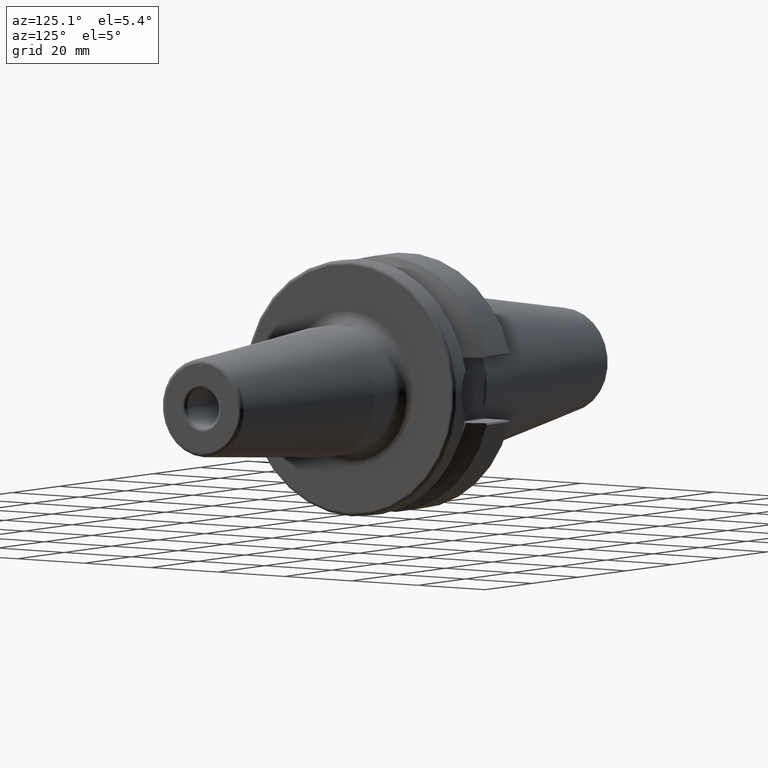
[diagram: clean part render]
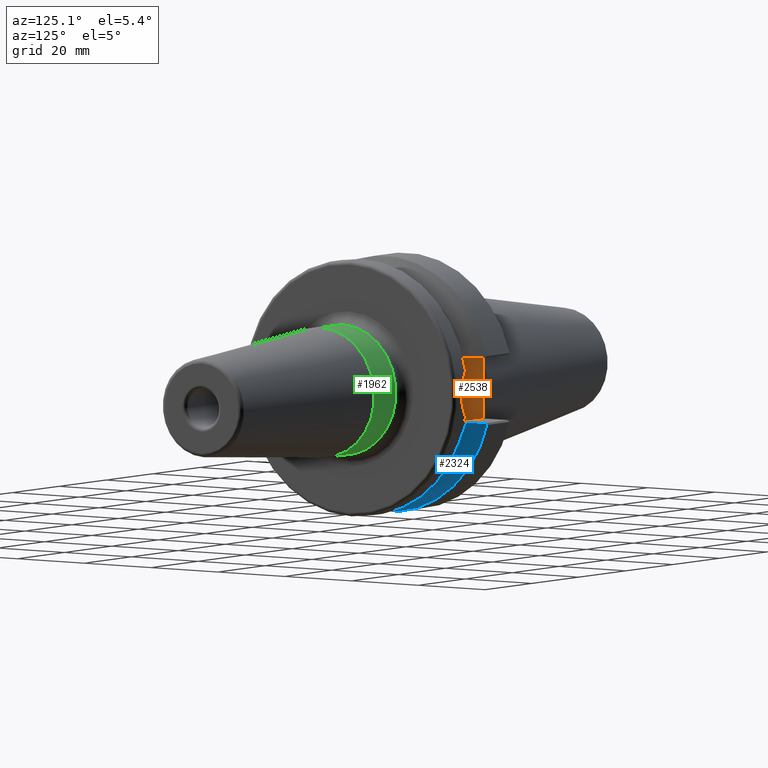
[diagram: same view with three faces highlighted in distinct colors, each labeled with its STEP entity id]
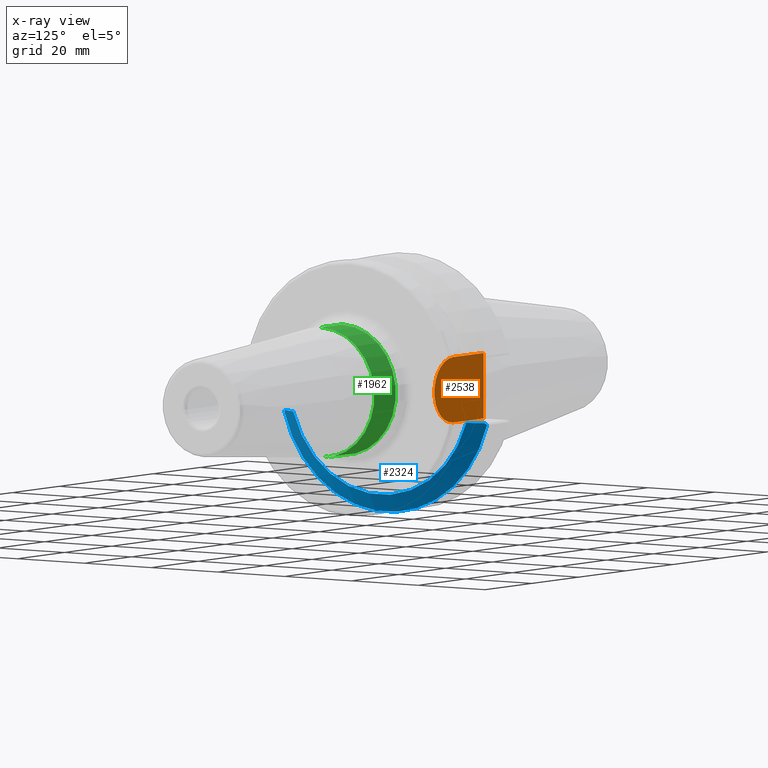
[diagram: x-ray of the same camera — body ghosted, the three highlighted faces saturated]
A machine part, auxiliary view with three faces highlighted in distinct colors.
The next image is the same camera in x-ray (body ghosted, the three faces saturated) — at least one of them is partly hidden behind the body in this view.
Their STEP definitions:

[orange] entity #2538 — the highlighted planar face has unit normal (0, 1, 0).
#881=DIRECTION('',(0.E0,0.E0,-1.E0));
#882=VECTOR('',#881,1.61E1);
#883=CARTESIAN_POINT('',(2.E0,2.26E1,8.05E0));
#884=LINE('',#883,#882);
#971=CARTESIAN_POINT('',(1.495E1,2.26E1,0.E0));
#972=DIRECTION('',(0.E0,-1.E0,0.E0));
#973=DIRECTION('',(0.E0,0.E0,-1.E0));
#974=AXIS2_PLACEMENT_3D('',#971,#972,#973);
#976=DIRECTION('',(1.E0,0.E0,0.E0));
#977=VECTOR('',#976,1.295E1);
#978=CARTESIAN_POINT('',(2.E0,2.26E1,8.05E0));
#979=LINE('',#978,#977);
#980=DIRECTION('',(-1.E0,0.E0,0.E0));
#981=VECTOR('',#980,1.295E1);
#982=CARTESIAN_POINT('',(1.495E1,2.26E1,-8.05E0));
#983=LINE('',#982,#981);
#1026=CARTESIAN_POINT('',(2.E0,2.26E1,8.05E0));
#1027=CARTESIAN_POINT('',(2.E0,2.26E1,-8.05E0));
#1028=VERTEX_POINT('',#1026);
#1029=VERTEX_POINT('',#1027);
#1046=CARTESIAN_POINT('',(1.495E1,2.26E1,-8.05E0));
#1047=CARTESIAN_POINT('',(1.495E1,2.26E1,8.05E0));
#1048=VERTEX_POINT('',#1046);
#1049=VERTEX_POINT('',#1047);
#2527=CARTESIAN_POINT('',(0.E0,2.26E1,0.E0));
#2528=DIRECTION('',(0.E0,1.E0,0.E0));
#2529=DIRECTION('',(1.E0,0.E0,0.E0));
#2530=AXIS2_PLACEMENT_3D('',#2527,#2528,#2529);
#2531=PLANE('',#2530);
#2532=ORIENTED_EDGE('',*,*,#2205,.T.);
#2533=ORIENTED_EDGE('',*,*,#2506,.F.);
#2534=ORIENTED_EDGE('',*,*,#2370,.T.);
#2535=ORIENTED_EDGE('',*,*,#2467,.F.);
#2536=EDGE_LOOP('',(#2532,#2533,#2534,#2535));
#2537=FACE_OUTER_BOUND('',#2536,.F.);
#2538=ADVANCED_FACE('',(#2537),#2531,.T.);
#975=CIRCLE('',#974,8.05E0);
#2205=EDGE_CURVE('',#1048,#1049,#975,.T.);
#2370=EDGE_CURVE('',#1028,#1029,#884,.T.);
#2467=EDGE_CURVE('',#1048,#1029,#983,.T.);
#2506=EDGE_CURVE('',#1028,#1049,#979,.T.);

[blue] entity #2324 — the highlighted conical surface has half-angle 60 deg.
#797=CARTESIAN_POINT('',(1.41E1,-2.589378524176E1,-8.05E0));
#798=CARTESIAN_POINT('',(1.386450341249E1,-2.632093406585E1,-8.05E0));
#799=CARTESIAN_POINT('',(1.338588596161E1,-2.718719807101E1,-8.05E0));
#800=CARTESIAN_POINT('',(1.264535505638E1,-2.852228716965E1,-8.05E0));
#801=CARTESIAN_POINT('',(1.213636940407E1,-2.943672353446E1,-8.05E0));
#802=CARTESIAN_POINT('',(1.187809346105E1,-2.99E1,-8.05E0));
#804=CARTESIAN_POINT('',(1.41E1,0.E0,0.E0));
#805=DIRECTION('',(1.E0,0.E0,0.E0));
#806=DIRECTION('',(0.E0,-9.549178917964E-1,-2.968700387830E-1));
#807=AXIS2_PLACEMENT_3D('',#804,#805,#806);
#809=CARTESIAN_POINT('',(1.187809346105E1,2.99E1,-8.05E0));
#810=CARTESIAN_POINT('',(1.213608053432E1,2.943724168785E1,-8.05E0));
#811=CARTESIAN_POINT('',(1.264468269184E1,2.852349654788E1,-8.05E0));
#812=CARTESIAN_POINT('',(1.338523678300E1,2.718837129527E1,-8.05E0));
#813=CARTESIAN_POINT('',(1.386422607045E1,2.632143711487E1,-8.05E0));
#814=CARTESIAN_POINT('',(1.41E1,2.589378524176E1,-8.05E0));
#816=CARTESIAN_POINT('',(1.187809346105E1,2.99E1,-8.05E0));
#817=CARTESIAN_POINT('',(1.184412243022E1,2.994800919416E1,-8.098009194156E0));
#818=CARTESIAN_POINT('',(1.177593456126E1,3.004428424075E1,-8.194284240747E0));
#819=CARTESIAN_POINT('',(1.167291601044E1,3.018946614020E1,-8.339466140200E0));
#820=CARTESIAN_POINT('',(1.160374493301E1,3.028676841650E1,-8.436768416504E0));
#821=CARTESIAN_POINT('',(1.15690365E1,3.033554803451E1,-8.485548034509E0));
#823=CARTESIAN_POINT('',(1.15690365E1,0.E0,0.E0));
#824=DIRECTION('',(-1.E0,0.E0,0.E0));
#825=DIRECTION('',(0.E0,9.630332709368E-1,-2.693824772860E-1));
#826=AXIS2_PLACEMENT_3D('',#823,#824,#825);
#828=CARTESIAN_POINT('',(1.15690365E1,-3.033554803451E1,-8.485548034509E0));
#829=CARTESIAN_POINT('',(1.162109299730E1,-3.026238725388E1,-8.412387253883E0));
#830=CARTESIAN_POINT('',(1.172465915984E1,-3.011663519535E1,-8.266635195345E0));
#831=CARTESIAN_POINT('',(1.182713113718E1,-2.997202195639E1,-8.122021956386E0));
#832=CARTESIAN_POINT('',(1.187809346105E1,-2.99E1,-8.05E0));
#1034=CARTESIAN_POINT('',(1.41E1,2.589378524176E1,-8.05E0));
#1036=VERTEX_POINT('',#1034);
#1134=VERTEX_POINT('',#816);
#1135=VERTEX_POINT('',#821);
#1154=CARTESIAN_POINT('',(1.15690365E1,-3.033554803451E1,-8.485548034509E0));
#1156=VERTEX_POINT('',#1154);
#1168=VERTEX_POINT('',#797);
#1169=VERTEX_POINT('',#802);
#2308=CARTESIAN_POINT('',(1.283451825E1,0.E0,0.E0));
#2309=DIRECTION('',(-1.E0,0.E0,0.E0));
#2310=DIRECTION('',(0.E0,0.E0,-1.E0));
#2311=AXIS2_PLACEMENT_3D('',#2308,#2309,#2310);
#2312=CONICAL_SURFACE('',#2311,2.930812131295E1,6.E1);
#2313=ORIENTED_EDGE('',*,*,#2119,.F.);
#2315=ORIENTED_EDGE('',*,*,#2314,.T.);
#2317=ORIENTED_EDGE('',*,*,#2316,.F.);
#2319=ORIENTED_EDGE('',*,*,#2318,.T.);
#2320=ORIENTED_EDGE('',*,*,#2235,.T.);
#2321=ORIENTED_EDGE('',*,*,#2281,.T.);
#2322=EDGE_LOOP('',(#2313,#2315,#2317,#2319,#2320,#2321));
#2323=FACE_OUTER_BOUND('',#2322,.F.);
#2324=ADVANCED_FACE('',(#2323),#2312,.T.);
#803=B_SPLINE_CURVE_WITH_KNOTS('',3,(#797,#798,#799,#800,#801,#802),
.UNSPECIFIED.,.F.,.F.,(4,1,1,4),(0.E0,3.333333333333E-1,6.666666666667E-1,1.E0),
.UNSPECIFIED.);
#808=CIRCLE('',#807,2.711624262590E1);
#815=B_SPLINE_CURVE_WITH_KNOTS('',3,(#809,#810,#811,#812,#813,#814),
.UNSPECIFIED.,.F.,.F.,(4,1,1,4),(0.E0,3.333333333333E-1,6.666666666667E-1,1.E0),
.UNSPECIFIED.);
#822=B_SPLINE_CURVE_WITH_KNOTS('',3,(#816,#817,#818,#819,#820,#821),
.UNSPECIFIED.,.F.,.F.,(4,1,1,4),(0.E0,3.333333333333E-1,6.666666666667E-1,1.E0),
.UNSPECIFIED.);
#827=CIRCLE('',#826,3.15E1);
#833=B_SPLINE_CURVE_WITH_KNOTS('',3,(#828,#829,#830,#831,#832),.UNSPECIFIED.,
.F.,.F.,(4,1,4),(0.E0,5.E-1,1.E0),.UNSPECIFIED.);
#2119=EDGE_CURVE('',#1168,#1169,#803,.T.);
#2235=EDGE_CURVE('',#1135,#1156,#827,.T.);
#2281=EDGE_CURVE('',#1156,#1169,#833,.T.);
#2314=EDGE_CURVE('',#1168,#1036,#808,.T.);
#2316=EDGE_CURVE('',#1134,#1036,#815,.T.);
#2318=EDGE_CURVE('',#1134,#1135,#822,.T.);

[green] entity #1962 — the highlighted cylindrical surface (partial cylindrical patch) has radius 16 mm, axis along (1, 0, 0).
#450=DIRECTION('',(-1.E0,0.E0,0.E0));
#451=VECTOR('',#450,9.175181055302E0);
#452=CARTESIAN_POINT('',(3.917518105530E1,0.E0,-1.6E1));
#453=LINE('',#452,#451);
#454=DIRECTION('',(-1.E0,0.E0,0.E0));
#455=VECTOR('',#454,9.175181055302E0);
#456=CARTESIAN_POINT('',(3.917518105530E1,0.E0,1.6E1));
#457=LINE('',#456,#455);
#463=CARTESIAN_POINT('',(3.917518105530E1,0.E0,0.E0));
#464=DIRECTION('',(1.E0,0.E0,0.E0));
#465=DIRECTION('',(0.E0,0.E0,-1.E0));
#466=AXIS2_PLACEMENT_3D('',#463,#464,#465);
#468=CARTESIAN_POINT('',(3.E1,0.E0,0.E0));
#469=DIRECTION('',(1.E0,0.E0,0.E0));
#470=DIRECTION('',(0.E0,0.E0,-1.E0));
#471=AXIS2_PLACEMENT_3D('',#468,#469,#470);
#1211=CARTESIAN_POINT('',(3.917518105530E1,0.E0,-1.6E1));
#1212=VERTEX_POINT('',#1211);
#1213=CARTESIAN_POINT('',(3.E1,0.E0,-1.6E1));
#1214=VERTEX_POINT('',#1213);
#1233=CARTESIAN_POINT('',(3.917518105530E1,0.E0,1.6E1));
#1234=VERTEX_POINT('',#1233);
#1235=CARTESIAN_POINT('',(3.E1,0.E0,1.6E1));
#1236=VERTEX_POINT('',#1235);
#1950=CARTESIAN_POINT('',(2.385E1,0.E0,0.E0));
#1951=DIRECTION('',(1.E0,0.E0,0.E0));
#1952=DIRECTION('',(0.E0,0.E0,1.E0));
#1953=AXIS2_PLACEMENT_3D('',#1950,#1951,#1952);
#1954=CYLINDRICAL_SURFACE('',#1953,1.6E1);
#1955=ORIENTED_EDGE('',*,*,#1940,.F.);
#1956=ORIENTED_EDGE('',*,*,#1917,.T.);
#1957=ORIENTED_EDGE('',*,*,#1944,.T.);
#1959=ORIENTED_EDGE('',*,*,#1958,.F.);
#1960=EDGE_LOOP('',(#1955,#1956,#1957,#1959));
#1961=FACE_OUTER_BOUND('',#1960,.F.);
#1962=ADVANCED_FACE('',(#1961),#1954,.T.);
#467=CIRCLE('',#466,1.6E1);
#472=CIRCLE('',#471,1.6E1);
#1917=EDGE_CURVE('',#1212,#1234,#467,.T.);
#1940=EDGE_CURVE('',#1212,#1214,#453,.T.);
#1944=EDGE_CURVE('',#1234,#1236,#457,.T.);
#1958=EDGE_CURVE('',#1214,#1236,#472,.T.);